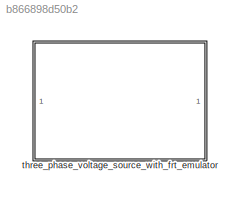
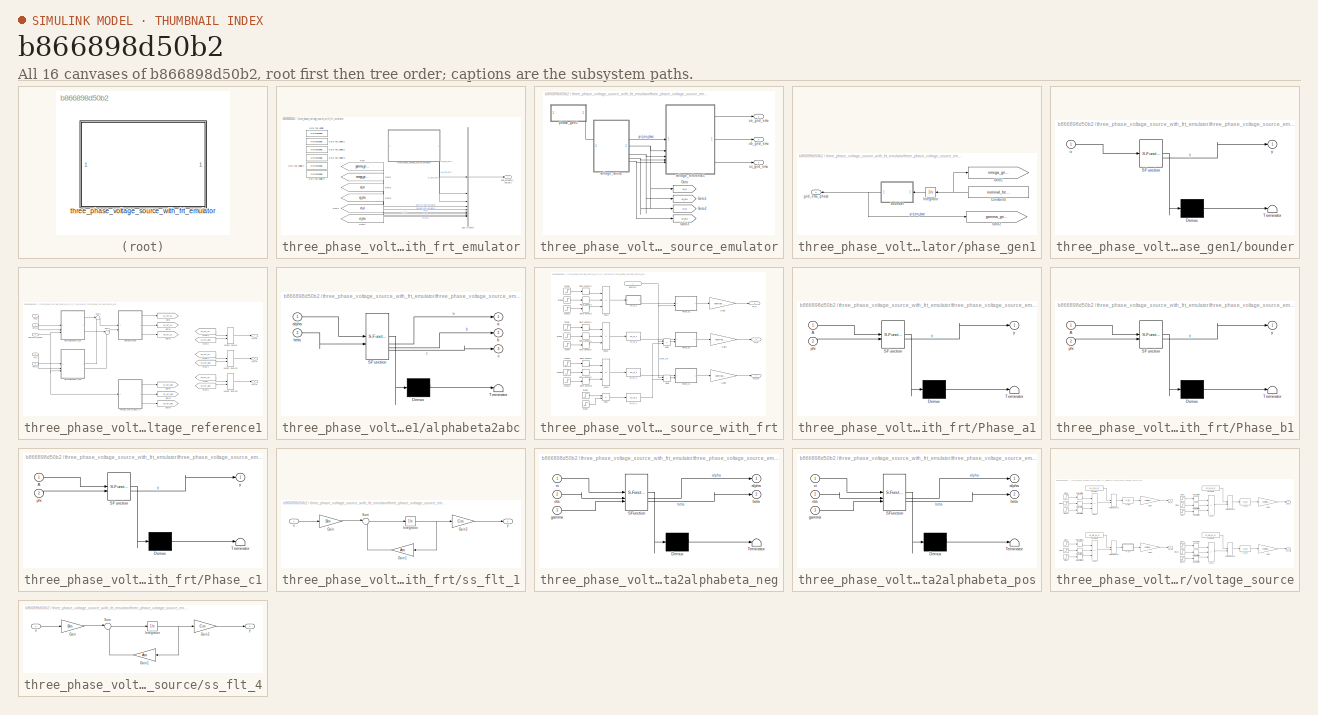
[diagram: thumbnail index - all 16 canvases of the model, root first then tree order]
MODEL slx_b866898d50b2
KIND library
CONFIG SolverName = VariableStepAuto
BLOCK [SubSystem] three_phase_voltage_source_with_frt_emulator
BLOCK [BusCreator] three_phase_voltage_source_with_frt_emulator/Bus Creator
  DisplayOption = bar
  InheritFromInputs = on
  Inputs = 9
BLOCK [From] three_phase_voltage_source_with_frt_emulator/From
  GotoTag = gamma_grid_emulator
  TagVisibility = scoped
BLOCK [From] three_phase_voltage_source_with_frt_emulator/From1
  GotoTag = omega_grid_emulator
  TagVisibility = scoped
BLOCK [From] three_phase_voltage_source_with_frt_emulator/From2
  GotoTag = vp_xi
  TagVisibility = scoped
BLOCK [From] three_phase_voltage_source_with_frt_emulator/From3
  GotoTag = vp_eta
  TagVisibility = scoped
BLOCK [From] three_phase_voltage_source_with_frt_emulator/From4
  GotoTag = vn_xi
  TagVisibility = scoped
BLOCK [From] three_phase_voltage_source_with_frt_emulator/From5
  GotoTag = vn_eta
  TagVisibility = scoped
BLOCK [GotoTagVisibility] three_phase_voltage_source_with_frt_emulator/Goto Tag Visibility
  GotoTag = omega_grid_emulator
BLOCK [GotoTagVisibility] three_phase_voltage_source_with_frt_emulator/Goto Tag Visibility1
  GotoTag = gamma_grid_emulator
BLOCK [GotoTagVisibility] three_phase_voltage_source_with_frt_emulator/Goto Tag Visibility2
  GotoTag = vp_xi
BLOCK [GotoTagVisibility] three_phase_voltage_source_with_frt_emulator/Goto Tag Visibility3
  GotoTag = vp_eta
BLOCK [GotoTagVisibility] three_phase_voltage_source_with_frt_emulator/Goto Tag Visibility4
  GotoTag = vn_xi
BLOCK [GotoTagVisibility] three_phase_voltage_source_with_frt_emulator/Goto Tag Visibility5
  GotoTag = vn_eta
BLOCK [Outport] three_phase_voltage_source_with_frt_emulator/grid_emulator_outputs
  VectorParamsAs1DForOutWhenUnconnected = off
BLOCK [SubSystem] three_phase_voltage_source_with_frt_emulator/three_phase_voltage_source_emulator
BLOCK [Goto] three_phase_voltage_source_with_frt_emulator/three_phase_voltage_source_emulator/Goto
  GotoTag = vp_xi
  TagVisibility = scoped
BLOCK [Goto] three_phase_voltage_source_with_frt_emulator/three_phase_voltage_source_emulator/Goto1
  GotoTag = vp_eta
  TagVisibility = scoped
BLOCK [Goto] three_phase_voltage_source_with_frt_emulator/three_phase_voltage_source_emulator/Goto2
  GotoTag = vn_xi
  TagVisibility = scoped
BLOCK [Goto] three_phase_voltage_source_with_frt_emulator/three_phase_voltage_source_emulator/Goto3
  GotoTag = vn_eta
  TagVisibility = scoped
BLOCK [SubSystem] three_phase_voltage_source_with_frt_emulator/three_phase_voltage_source_emulator/phase_gen1
BLOCK [Constant] three_phase_voltage_source_with_frt_emulator/three_phase_voltage_source_emulator/phase_gen1/Constant4
  NameLocation = top
  Value = nominal_frequency_m*2*pi
BLOCK [Goto] three_phase_voltage_source_with_frt_emulator/three_phase_voltage_source_emulator/phase_gen1/Goto1
  GotoTag = omega_grid_emulator
  TagVisibility = scoped
BLOCK [Goto] three_phase_voltage_source_with_frt_emulator/three_phase_voltage_source_emulator/phase_gen1/Goto2
  GotoTag = gamma_grid_emulator
  TagVisibility = scoped
BLOCK [Integrator] three_phase_voltage_source_with_frt_emulator/three_phase_voltage_source_emulator/phase_gen1/Integrator
  NameLocation = top
BLOCK [SubSystem] three_phase_voltage_source_with_frt_emulator/three_phase_voltage_source_emulator/phase_gen1/bounder
  ErrorFcn = Stateflow.Translate.translate
  PermitHierarchicalResolution = ExplicitOnly
  SFBlockType = MATLAB Function
  TreatAsAtomicUnit = on
  TreatAsGroupedWhenPropagatingVariantConditions = off
BLOCK [Demux] three_phase_voltage_source_with_frt_emulator/three_phase_voltage_source_emulator/phase_gen1/bounder/ Demux 
  Outputs = 1
BLOCK [S-Function] three_phase_voltage_source_with_frt_emulator/three_phase_voltage_source_emulator/phase_gen1/bounder/ SFunction 
  EnableBusSupport = off
  FunctionName = sf_sfun
  PortCounts = [1 2]
  SFcnIsStateOwnerBlock = off
  SFunctionDeploymentMode = off
  Tag = Stateflow S-Function 4
BLOCK [Terminator] three_phase_voltage_source_with_frt_emulator/three_phase_voltage_source_emulator/phase_gen1/bounder/ Terminator 
BLOCK [Inport] three_phase_voltage_source_with_frt_emulator/three_phase_voltage_source_emulator/phase_gen1/bounder/u
BLOCK [Outport] three_phase_voltage_source_with_frt_emulator/three_phase_voltage_source_emulator/phase_gen1/bounder/y
  VectorParamsAs1DForOutWhenUnconnected = off
BLOCK [Outport] three_phase_voltage_source_with_frt_emulator/three_phase_voltage_source_emulator/phase_gen1/grid_emu_phase
  VectorParamsAs1DForOutWhenUnconnected = off
BLOCK [Outport] three_phase_voltage_source_with_frt_emulator/three_phase_voltage_source_emulator/ua_grid_emu
  VectorParamsAs1DForOutWhenUnconnected = off
BLOCK [Outport] three_phase_voltage_source_with_frt_emulator/three_phase_voltage_source_emulator/ub_grid_emu
  Port = 2
  VectorParamsAs1DForOutWhenUnconnected = off
BLOCK [Outport] three_phase_voltage_source_with_frt_emulator/three_phase_voltage_source_emulator/uc_grid_emu
  Port = 3
  VectorParamsAs1DForOutWhenUnconnected = off
BLOCK [SubSystem] three_phase_voltage_source_with_frt_emulator/three_phase_voltage_source_emulator/voltage_reference1
BLOCK [From] three_phase_voltage_source_with_frt_emulator/three_phase_voltage_source_emulator/voltage_reference1/From
  GotoTag = V3_ref_xieta
BLOCK [From] three_phase_voltage_source_with_frt_emulator/three_phase_voltage_source_emulator/voltage_reference1/From1
  GotoTag = V2_ref_xieta
BLOCK [From] three_phase_voltage_source_with_frt_emulator/three_phase_voltage_source_emulator/voltage_reference1/From2
  GotoTag = V1_ref_xieta
BLOCK [From] three_phase_voltage_source_with_frt_emulator/three_phase_voltage_source_emulator/voltage_reference1/From3
  GotoTag = V1_ref_abc
BLOCK [From] three_phase_voltage_source_with_frt_emulator/three_phase_voltage_source_emulator/voltage_reference1/From4
  GotoTag = V2_ref_abc
BLOCK [From] three_phase_voltage_source_with_frt_emulator/three_phase_voltage_source_emulator/voltage_reference1/From5
  GotoTag = V3_ref_abc
BLOCK [Goto] three_phase_voltage_source_with_frt_emulator/three_phase_voltage_source_emulator/voltage_reference1/Goto
  GotoTag = V1_ref_xieta
BLOCK [Goto] three_phase_voltage_source_with_frt_emulator/three_phase_voltage_source_emulator/voltage_reference1/Goto1
  GotoTag = V2_ref_xieta
BLOCK [Goto] three_phase_voltage_source_with_frt_emulator/three_phase_voltage_source_emulator/voltage_reference1/Goto2
  GotoTag = V3_ref_xieta
BLOCK [Goto] three_phase_voltage_source_with_frt_emulator/three_phase_voltage_source_emulator/voltage_reference1/Goto3
  GotoTag = V1_ref_abc
BLOCK [Goto] three_phase_voltage_source_with_frt_emulator/three_phase_voltage_source_emulator/voltage_reference1/Goto4
  GotoTag = V2_ref_abc
BLOCK [Goto] three_phase_voltage_source_with_frt_emulator/three_phase_voltage_source_emulator/voltage_reference1/Goto5
  GotoTag = V3_ref_abc
BLOCK [Sum] three_phase_voltage_source_with_frt_emulator/three_phase_voltage_source_emulator/voltage_reference1/Sum1
  Inputs = |++
BLOCK [Sum] three_phase_voltage_source_with_frt_emulator/three_phase_voltage_source_emulator/voltage_reference1/Sum4
  Inputs = |++
BLOCK [Outport] three_phase_voltage_source_with_frt_emulator/three_phase_voltage_source_emulator/voltage_reference1/V1_ref
  VectorParamsAs1DForOutWhenUnconnected = off
BLOCK [Outport] three_phase_voltage_source_with_frt_emulator/three_phase_voltage_source_emulator/voltage_reference1/V2_ref
  Port = 2
  VectorParamsAs1DForOutWhenUnconnected = off
BLOCK [Outport] three_phase_voltage_source_with_frt_emulator/three_phase_voltage_source_emulator/voltage_reference1/V3_ref
  Port = 3
  VectorParamsAs1DForOutWhenUnconnected = off
BLOCK [VariantSource] three_phase_voltage_source_with_frt_emulator/three_phase_voltage_source_emulator/voltage_reference1/Variant Source
BLOCK [VariantSource] three_phase_voltage_source_with_frt_emulator/three_phase_voltage_source_emulator/voltage_reference1/Variant Source1
BLOCK [VariantSource] three_phase_voltage_source_with_frt_emulator/three_phase_voltage_source_emulator/voltage_reference1/Variant Source2
BLOCK [Inport] three_phase_voltage_source_with_frt_emulator/three_phase_voltage_source_emulator/voltage_reference1/Veta_n
  Port = 5
BLOCK [Inport] three_phase_voltage_source_with_frt_emulator/three_phase_voltage_source_emulator/voltage_reference1/Veta_p
  Port = 3
BLOCK [Inport] three_phase_voltage_source_with_frt_emulator/three_phase_voltage_source_emulator/voltage_reference1/Vxi_n
  Port = 4
BLOCK [Inport] three_phase_voltage_source_with_frt_emulator/three_phase_voltage_source_emulator/voltage_reference1/Vxi_p
  Port = 2
BLOCK [SubSystem] three_phase_voltage_source_with_frt_emulator/three_phase_voltage_source_emulator/voltage_reference1/alphabeta2abc
  ErrorFcn = Stateflow.Translate.translate
  PermitHierarchicalResolution = ExplicitOnly
  SFBlockType = MATLAB Function
  TreatAsAtomicUnit = on
BLOCK [Demux] three_phase_voltage_source_with_frt_emulator/three_phase_voltage_source_emulator/voltage_reference1/alphabeta2abc/ Demux 
  Outputs = 1
BLOCK [S-Function] three_phase_voltage_source_with_frt_emulator/three_phase_voltage_source_emulator/voltage_reference1/alphabeta2abc/ SFunction 
  EnableBusSupport = off
  FunctionName = sf_sfun
  PortCounts = [2 4]
  SFcnIsStateOwnerBlock = off
  SFunctionDeploymentMode = off
  Tag = Stateflow S-Function 5
BLOCK [Terminator] three_phase_voltage_source_with_frt_emulator/three_phase_voltage_source_emulator/voltage_reference1/alphabeta2abc/ Terminator 
BLOCK [Outport] three_phase_voltage_source_with_frt_emulator/three_phase_voltage_source_emulator/voltage_reference1/alphabeta2abc/a
BLOCK [Inport] three_phase_voltage_source_with_frt_emulator/three_phase_voltage_source_emulator/voltage_reference1/alphabeta2abc/alpha
BLOCK [Outport] three_phase_voltage_source_with_frt_emulator/three_phase_voltage_source_emulator/voltage_reference1/alphabeta2abc/b
  Port = 2
BLOCK [Inport] three_phase_voltage_source_with_frt_emulator/three_phase_voltage_source_emulator/voltage_reference1/alphabeta2abc/beta
  Port = 2
BLOCK [Outport] three_phase_voltage_source_with_frt_emulator/three_phase_voltage_source_emulator/voltage_reference1/alphabeta2abc/c
  Port = 3
BLOCK [Inport] three_phase_voltage_source_with_frt_emulator/three_phase_voltage_source_emulator/voltage_reference1/grid_emu_phase
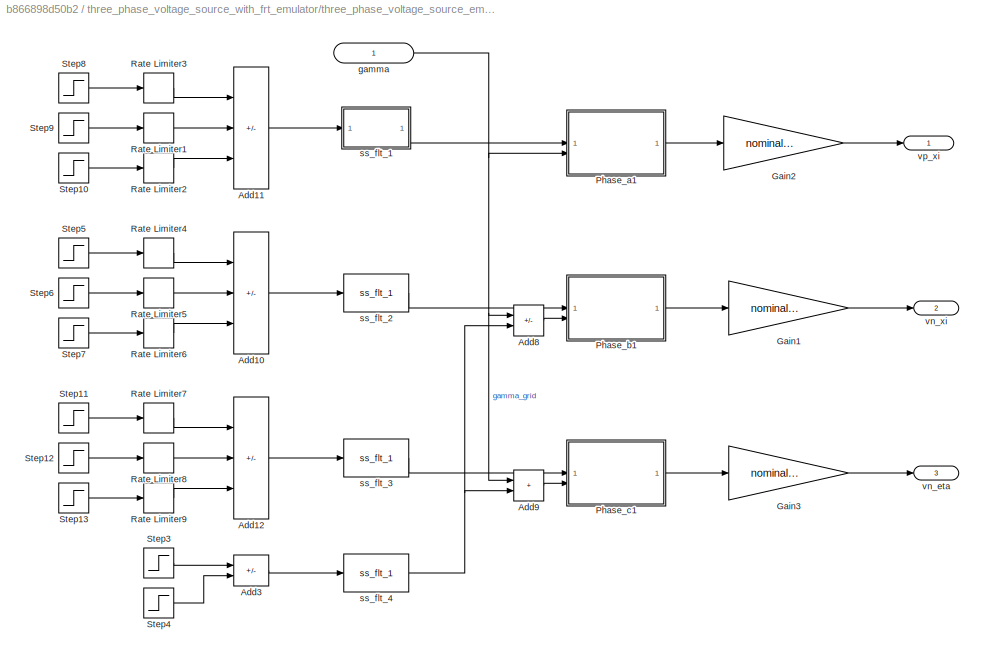
BLOCK [SubSystem] three_phase_voltage_source_with_frt_emulator/three_phase_voltage_source_emulator/voltage_reference1/voltage_source_with_frt
BLOCK [Sum] three_phase_voltage_source_with_frt_emulator/three_phase_voltage_source_emulator/voltage_reference1/voltage_source_with_frt/Add10
  IconShape = rectangular
  Inputs = +-+
BLOCK [Sum] three_phase_voltage_source_with_frt_emulator/three_phase_voltage_source_emulator/voltage_reference1/voltage_source_with_frt/Add11
  IconShape = rectangular
  Inputs = +-+
BLOCK [Sum] three_phase_voltage_source_with_frt_emulator/three_phase_voltage_source_emulator/voltage_reference1/voltage_source_with_frt/Add12
  IconShape = rectangular
  Inputs = +-+
BLOCK [Sum] three_phase_voltage_source_with_frt_emulator/three_phase_voltage_source_emulator/voltage_reference1/voltage_source_with_frt/Add3
  IconShape = rectangular
  Inputs = +-
BLOCK [Sum] three_phase_voltage_source_with_frt_emulator/three_phase_voltage_source_emulator/voltage_reference1/voltage_source_with_frt/Add8
  IconShape = rectangular
  Inputs = +-
BLOCK [Sum] three_phase_voltage_source_with_frt_emulator/three_phase_voltage_source_emulator/voltage_reference1/voltage_source_with_frt/Add9
  IconShape = rectangular
BLOCK [Gain] three_phase_voltage_source_with_frt_emulator/three_phase_voltage_source_emulator/voltage_reference1/voltage_source_with_frt/Gain1
  Gain = nominal_voltage_m/sqrt(3/2)
BLOCK [Gain] three_phase_voltage_source_with_frt_emulator/three_phase_voltage_source_emulator/voltage_reference1/voltage_source_with_frt/Gain2
  Gain = nominal_voltage_m/sqrt(3/2)
BLOCK [Gain] three_phase_voltage_source_with_frt_emulator/three_phase_voltage_source_emulator/voltage_reference1/voltage_source_with_frt/Gain3
  Gain = nominal_voltage_m/sqrt(3/2)
BLOCK [SubSystem] three_phase_voltage_source_with_frt_emulator/three_phase_voltage_source_emulator/voltage_reference1/voltage_source_with_frt/Phase_a1
  ErrorFcn = Stateflow.Translate.translate
  PermitHierarchicalResolution = ExplicitOnly
  SFBlockType = MATLAB Function
  TreatAsAtomicUnit = on
BLOCK [Demux] three_phase_voltage_source_with_frt_emulator/three_phase_voltage_source_emulator/voltage_reference1/voltage_source_with_frt/Phase_a1/ Demux 
  Outputs = 1
BLOCK [S-Function] three_phase_voltage_source_with_frt_emulator/three_phase_voltage_source_emulator/voltage_reference1/voltage_source_with_frt/Phase_a1/ SFunction 
  EnableBusSupport = off
  FunctionName = sf_sfun
  PortCounts = [2 2]
  SFcnIsStateOwnerBlock = off
  SFunctionDeploymentMode = off
  Tag = Stateflow S-Function 7
BLOCK [Terminator] three_phase_voltage_source_with_frt_emulator/three_phase_voltage_source_emulator/voltage_reference1/voltage_source_with_frt/Phase_a1/ Terminator 
BLOCK [Inport] three_phase_voltage_source_with_frt_emulator/three_phase_voltage_source_emulator/voltage_reference1/voltage_source_with_frt/Phase_a1/A
BLOCK [Inport] three_phase_voltage_source_with_frt_emulator/three_phase_voltage_source_emulator/voltage_reference1/voltage_source_with_frt/Phase_a1/phi
  Port = 2
BLOCK [Outport] three_phase_voltage_source_with_frt_emulator/three_phase_voltage_source_emulator/voltage_reference1/voltage_source_with_frt/Phase_a1/y
BLOCK [SubSystem] three_phase_voltage_source_with_frt_emulator/three_phase_voltage_source_emulator/voltage_reference1/voltage_source_with_frt/Phase_b1
  ErrorFcn = Stateflow.Translate.translate
  PermitHierarchicalResolution = ExplicitOnly
  SFBlockType = MATLAB Function
  TreatAsAtomicUnit = on
BLOCK [Demux] three_phase_voltage_source_with_frt_emulator/three_phase_voltage_source_emulator/voltage_reference1/voltage_source_with_frt/Phase_b1/ Demux 
  Outputs = 1
BLOCK [S-Function] three_phase_voltage_source_with_frt_emulator/three_phase_voltage_source_emulator/voltage_reference1/voltage_source_with_frt/Phase_b1/ SFunction 
  EnableBusSupport = off
  FunctionName = sf_sfun
  PortCounts = [2 2]
  SFcnIsStateOwnerBlock = off
  SFunctionDeploymentMode = off
  Tag = Stateflow S-Function 9
BLOCK [Terminator] three_phase_voltage_source_with_frt_emulator/three_phase_voltage_source_emulator/voltage_reference1/voltage_source_with_frt/Phase_b1/ Terminator 
BLOCK [Inport] three_phase_voltage_source_with_frt_emulator/three_phase_voltage_source_emulator/voltage_reference1/voltage_source_with_frt/Phase_b1/A
BLOCK [Inport] three_phase_voltage_source_with_frt_emulator/three_phase_voltage_source_emulator/voltage_reference1/voltage_source_with_frt/Phase_b1/phi
  Port = 2
BLOCK [Outport] three_phase_voltage_source_with_frt_emulator/three_phase_voltage_source_emulator/voltage_reference1/voltage_source_with_frt/Phase_b1/y
BLOCK [SubSystem] three_phase_voltage_source_with_frt_emulator/three_phase_voltage_source_emulator/voltage_reference1/voltage_source_with_frt/Phase_c1
  ErrorFcn = Stateflow.Translate.translate
  PermitHierarchicalResolution = ExplicitOnly
  SFBlockType = MATLAB Function
  TreatAsAtomicUnit = on
BLOCK [Demux] three_phase_voltage_source_with_frt_emulator/three_phase_voltage_source_emulator/voltage_reference1/voltage_source_with_frt/Phase_c1/ Demux 
  Outputs = 1
BLOCK [S-Function] three_phase_voltage_source_with_frt_emulator/three_phase_voltage_source_emulator/voltage_reference1/voltage_source_with_frt/Phase_c1/ SFunction 
  EnableBusSupport = off
  FunctionName = sf_sfun
  PortCounts = [2 2]
  SFcnIsStateOwnerBlock = off
  SFunctionDeploymentMode = off
  Tag = Stateflow S-Function 15
BLOCK [Terminator] three_phase_voltage_source_with_frt_emulator/three_phase_voltage_source_emulator/voltage_reference1/voltage_source_with_frt/Phase_c1/ Terminator 
BLOCK [Inport] three_phase_voltage_source_with_frt_emulator/three_phase_voltage_source_emulator/voltage_reference1/voltage_source_with_frt/Phase_c1/A
BLOCK [Inport] three_phase_voltage_source_with_frt_emulator/three_phase_voltage_source_emulator/voltage_reference1/voltage_source_with_frt/Phase_c1/phi
  Port = 2
BLOCK [Outport] three_phase_voltage_source_with_frt_emulator/three_phase_voltage_source_emulator/voltage_reference1/voltage_source_with_frt/Phase_c1/y
BLOCK [RateLimiter] three_phase_voltage_source_with_frt_emulator/three_phase_voltage_source_emulator/voltage_reference1/voltage_source_with_frt/Rate Limiter1
  FallingSlewLimit = -Vemu_ref_norm_m/t_ramp_m
  RisingSlewLimit = Vemu_ref_norm_m/t_ramp_m
  SampleTimeMode = inherited
BLOCK [RateLimiter] three_phase_voltage_source_with_frt_emulator/three_phase_voltage_source_emulator/voltage_reference1/voltage_source_with_frt/Rate Limiter2
  FallingSlewLimit = -Vemu_ref_norm_m/t_ramp_m
  RisingSlewLimit = Vemu_ref_norm_m/t_ramp_m
  SampleTimeMode = inherited
BLOCK [RateLimiter] three_phase_voltage_source_with_frt_emulator/three_phase_voltage_source_emulator/voltage_reference1/voltage_source_with_frt/Rate Limiter3
  FallingSlewLimit = -Vemu_ref_norm_m/t_ramp_m
  RisingSlewLimit = Vemu_ref_norm_m/t_ramp_m
  SampleTimeMode = inherited
BLOCK [RateLimiter] three_phase_voltage_source_with_frt_emulator/three_phase_voltage_source_emulator/voltage_reference1/voltage_source_with_frt/Rate Limiter4
  FallingSlewLimit = -Vemu_ref_norm_m/t_ramp_m
  RisingSlewLimit = Vemu_ref_norm_m/t_ramp_m
  SampleTimeMode = inherited
BLOCK [RateLimiter] three_phase_voltage_source_with_frt_emulator/three_phase_voltage_source_emulator/voltage_reference1/voltage_source_with_frt/Rate Limiter5
  FallingSlewLimit = -Vemu_ref_norm_m/t_ramp_m
  RisingSlewLimit = Vemu_ref_norm_m/t_ramp_m
  SampleTimeMode = inherited
BLOCK [RateLimiter] three_phase_voltage_source_with_frt_emulator/three_phase_voltage_source_emulator/voltage_reference1/voltage_source_with_frt/Rate Limiter6
  FallingSlewLimit = -Vemu_ref_norm_m/t_ramp_m
  RisingSlewLimit = Vemu_ref_norm_m/t_ramp_m
  SampleTimeMode = inherited
BLOCK [RateLimiter] three_phase_voltage_source_with_frt_emulator/three_phase_voltage_source_emulator/voltage_reference1/voltage_source_with_frt/Rate Limiter7
  FallingSlewLimit = -Vemu_ref_norm_m/t_ramp_m
  RisingSlewLimit = Vemu_ref_norm_m/t_ramp_m
  SampleTimeMode = inherited
BLOCK [RateLimiter] three_phase_voltage_source_with_frt_emulator/three_phase_voltage_source_emulator/voltage_reference1/voltage_source_with_frt/Rate Limiter8
  FallingSlewLimit = -Vemu_ref_norm_m/t_ramp_m
  RisingSlewLimit = Vemu_ref_norm_m/t_ramp_m
  SampleTimeMode = inherited
BLOCK [RateLimiter] three_phase_voltage_source_with_frt_emulator/three_phase_voltage_source_emulator/voltage_reference1/voltage_source_with_frt/Rate Limiter9
  FallingSlewLimit = -Vemu_ref_norm_m/t_ramp_m
  RisingSlewLimit = Vemu_ref_norm_m/t_ramp_m
  SampleTimeMode = inherited
BLOCK [Step] three_phase_voltage_source_with_frt_emulator/three_phase_voltage_source_emulator/voltage_reference1/voltage_source_with_frt/Step10
  FinalValue = Vemu_ref_norm_m*(1-Amplitude_U_m)
  SampleTime = 0
  Time = end_time_LVRT_m
BLOCK [Step] three_phase_voltage_source_with_frt_emulator/three_phase_voltage_source_emulator/voltage_reference1/voltage_source_with_frt/Step11
  FinalValue = Vemu_ref_norm_m
  SampleTime = 0
  Time = 0
BLOCK [Step] three_phase_voltage_source_with_frt_emulator/three_phase_voltage_source_emulator/voltage_reference1/voltage_source_with_frt/Step12
  FinalValue = Vemu_ref_norm_m*(1-Amplitude_W_m)
  SampleTime = 0
  Time = start_time_LVRT_m
BLOCK [Step] three_phase_voltage_source_with_frt_emulator/three_phase_voltage_source_emulator/voltage_reference1/voltage_source_with_frt/Step13
  FinalValue = Vemu_ref_norm_m*(1-Amplitude_W_m)
  SampleTime = 0
  Time = end_time_LVRT_m
BLOCK [Step] three_phase_voltage_source_with_frt_emulator/three_phase_voltage_source_emulator/voltage_reference1/voltage_source_with_frt/Step3
  FinalValue = Phase_shift_m
  SampleTime = 0
  Time = start_time_LVRT
BLOCK [Step] three_phase_voltage_source_with_frt_emulator/three_phase_voltage_source_emulator/voltage_reference1/voltage_source_with_frt/Step4
  FinalValue = Phase_shift_m
  SampleTime = 0
  Time = end_time_LVRT_m
BLOCK [Step] three_phase_voltage_source_with_frt_emulator/three_phase_voltage_source_emulator/voltage_reference1/voltage_source_with_frt/Step5
  FinalValue = Vemu_ref_norm_m
  SampleTime = 0
  Time = 0
BLOCK [Step] three_phase_voltage_source_with_frt_emulator/three_phase_voltage_source_emulator/voltage_reference1/voltage_source_with_frt/Step6
  FinalValue = Vemu_ref_norm_m*(1-Amplitude_V_m)
  SampleTime = 0
  Time = start_time_LVRT_m
BLOCK [Step] three_phase_voltage_source_with_frt_emulator/three_phase_voltage_source_emulator/voltage_reference1/voltage_source_with_frt/Step7
  FinalValue = Vemu_ref_norm_m*(1-Amplitude_V_m)
  SampleTime = 0
  Time = end_time_LVRT_m
BLOCK [Step] three_phase_voltage_source_with_frt_emulator/three_phase_voltage_source_emulator/voltage_reference1/voltage_source_with_frt/Step8
  FinalValue = Vemu_ref_norm_m
  SampleTime = 0
  Time = 0
BLOCK [Step] three_phase_voltage_source_with_frt_emulator/three_phase_voltage_source_emulator/voltage_reference1/voltage_source_with_frt/Step9
  FinalValue = Vemu_ref_norm_m*(1-Amplitude_U_m)
  SampleTime = 0
  Time = start_time_LVRT_m
BLOCK [Inport] three_phase_voltage_source_with_frt_emulator/three_phase_voltage_source_emulator/voltage_reference1/voltage_source_with_frt/gamma
  IconDisplay = Signal name
BLOCK [SubSystem] three_phase_voltage_source_with_frt_emulator/three_phase_voltage_source_emulator/voltage_reference1/voltage_source_with_frt/ss_flt_1
BLOCK [Gain] three_phase_voltage_source_with_frt_emulator/three_phase_voltage_source_emulator/voltage_reference1/voltage_source_with_frt/ss_flt_1/Gain
  Gain = Bm
  Multiplication = Matrix(K*u)
BLOCK [Gain] three_phase_voltage_source_with_frt_emulator/three_phase_voltage_source_emulator/voltage_reference1/voltage_source_with_frt/ss_flt_1/Gain1
  Gain = Am
  Multiplication = Matrix(K*u)
  NameLocation = top
BLOCK [Gain] three_phase_voltage_source_with_frt_emulator/three_phase_voltage_source_emulator/voltage_reference1/voltage_source_with_frt/ss_flt_1/Gain2
  Gain = Cm
  Multiplication = Matrix(K*u)
BLOCK [Integrator] three_phase_voltage_source_with_frt_emulator/three_phase_voltage_source_emulator/voltage_reference1/voltage_source_with_frt/ss_flt_1/Integrator
BLOCK [Sum] three_phase_voltage_source_with_frt_emulator/three_phase_voltage_source_emulator/voltage_reference1/voltage_source_with_frt/ss_flt_1/Sum
  Inputs = |++
BLOCK [Inport] three_phase_voltage_source_with_frt_emulator/three_phase_voltage_source_emulator/voltage_reference1/voltage_source_with_frt/ss_flt_1/u
BLOCK [Outport] three_phase_voltage_source_with_frt_emulator/three_phase_voltage_source_emulator/voltage_reference1/voltage_source_with_frt/ss_flt_1/y
BLOCK [Reference] three_phase_voltage_source_with_frt_emulator/three_phase_voltage_source_emulator/voltage_reference1/voltage_source_with_frt/ss_flt_2  REF=$bdroot/three_phase_voltage_source_with_frt_emulator/three_phase_voltage_source_emulator/voltage_reference1/voltage_source_with_frt/ss_flt_1
  SourceBlock = $bdroot/three_phase_voltage_source_with_frt_emulator/three_phase_voltage_source_emulator/voltage_reference1/voltage_source_with_frt/ss_flt_1
  SourceType = SubSystem
BLOCK [Reference] three_phase_voltage_source_with_frt_emulator/three_phase_voltage_source_emulator/voltage_reference1/voltage_source_with_frt/ss_flt_3  REF=$bdroot/three_phase_voltage_source_with_frt_emulator/three_phase_voltage_source_emulator/voltage_reference1/voltage_source_with_frt/ss_flt_1
  SourceBlock = $bdroot/three_phase_voltage_source_with_frt_emulator/three_phase_voltage_source_emulator/voltage_reference1/voltage_source_with_frt/ss_flt_1
  SourceType = SubSystem
BLOCK [Reference] three_phase_voltage_source_with_frt_emulator/three_phase_voltage_source_emulator/voltage_reference1/voltage_source_with_frt/ss_flt_4  REF=$bdroot/three_phase_voltage_source_with_frt_emulator/three_phase_voltage_source_emulator/voltage_reference1/voltage_source_with_frt/ss_flt_1
  SourceBlock = $bdroot/three_phase_voltage_source_with_frt_emulator/three_phase_voltage_source_emulator/voltage_reference1/voltage_source_with_frt/ss_flt_1
  SourceType = SubSystem
BLOCK [Outport] three_phase_voltage_source_with_frt_emulator/three_phase_voltage_source_emulator/voltage_reference1/voltage_source_with_frt/vn_eta
  IconDisplay = Signal name
  Port = 3
  VectorParamsAs1DForOutWhenUnconnected = off
BLOCK [Outport] three_phase_voltage_source_with_frt_emulator/three_phase_voltage_source_emulator/voltage_reference1/voltage_source_with_frt/vn_xi
  IconDisplay = Signal name
  Port = 2
  VectorParamsAs1DForOutWhenUnconnected = off
BLOCK [Outport] three_phase_voltage_source_with_frt_emulator/three_phase_voltage_source_emulator/voltage_reference1/voltage_source_with_frt/vp_xi
  IconDisplay = Signal name
  VectorParamsAs1DForOutWhenUnconnected = off
BLOCK [SubSystem] three_phase_voltage_source_with_frt_emulator/three_phase_voltage_source_emulator/voltage_reference1/xieta2alphabeta_neg
  ErrorFcn = Stateflow.Translate.translate
  PermitHierarchicalResolution = ExplicitOnly
  SFBlockType = MATLAB Function
  TreatAsAtomicUnit = on
BLOCK [Demux] three_phase_voltage_source_with_frt_emulator/three_phase_voltage_source_emulator/voltage_reference1/xieta2alphabeta_neg/ Demux 
  Outputs = 1
BLOCK [S-Function] three_phase_voltage_source_with_frt_emulator/three_phase_voltage_source_emulator/voltage_reference1/xieta2alphabeta_neg/ SFunction 
  EnableBusSupport = off
  FunctionName = sf_sfun
  PortCounts = [3 3]
  SFcnIsStateOwnerBlock = off
  SFunctionDeploymentMode = off
  Tag = Stateflow S-Function 23
BLOCK [Terminator] three_phase_voltage_source_with_frt_emulator/three_phase_voltage_source_emulator/voltage_reference1/xieta2alphabeta_neg/ Terminator 
BLOCK [Outport] three_phase_voltage_source_with_frt_emulator/three_phase_voltage_source_emulator/voltage_reference1/xieta2alphabeta_neg/alpha
BLOCK [Outport] three_phase_voltage_source_with_frt_emulator/three_phase_voltage_source_emulator/voltage_reference1/xieta2alphabeta_neg/beta
  Port = 2
BLOCK [Inport] three_phase_voltage_source_with_frt_emulator/three_phase_voltage_source_emulator/voltage_reference1/xieta2alphabeta_neg/eta
  Port = 2
BLOCK [Inport] three_phase_voltage_source_with_frt_emulator/three_phase_voltage_source_emulator/voltage_reference1/xieta2alphabeta_neg/gamma
  Port = 3
BLOCK [Inport] three_phase_voltage_source_with_frt_emulator/three_phase_voltage_source_emulator/voltage_reference1/xieta2alphabeta_neg/xi
BLOCK [SubSystem] three_phase_voltage_source_with_frt_emulator/three_phase_voltage_source_emulator/voltage_reference1/xieta2alphabeta_pos
  ErrorFcn = Stateflow.Translate.translate
  PermitHierarchicalResolution = ExplicitOnly
  SFBlockType = MATLAB Function
  TreatAsAtomicUnit = on
BLOCK [Demux] three_phase_voltage_source_with_frt_emulator/three_phase_voltage_source_emulator/voltage_reference1/xieta2alphabeta_pos/ Demux 
  Outputs = 1
BLOCK [S-Function] three_phase_voltage_source_with_frt_emulator/three_phase_voltage_source_emulator/voltage_reference1/xieta2alphabeta_pos/ SFunction 
  EnableBusSupport = off
  FunctionName = sf_sfun
  PortCounts = [3 3]
  SFcnIsStateOwnerBlock = off
  SFunctionDeploymentMode = off
  Tag = Stateflow S-Function 24
BLOCK [Terminator] three_phase_voltage_source_with_frt_emulator/three_phase_voltage_source_emulator/voltage_reference1/xieta2alphabeta_pos/ Terminator 
BLOCK [Outport] three_phase_voltage_source_with_frt_emulator/three_phase_voltage_source_emulator/voltage_reference1/xieta2alphabeta_pos/alpha
BLOCK [Outport] three_phase_voltage_source_with_frt_emulator/three_phase_voltage_source_emulator/voltage_reference1/xieta2alphabeta_pos/beta
  Port = 2
BLOCK [Inport] three_phase_voltage_source_with_frt_emulator/three_phase_voltage_source_emulator/voltage_reference1/xieta2alphabeta_pos/eta
  Port = 2
BLOCK [Inport] three_phase_voltage_source_with_frt_emulator/three_phase_voltage_source_emulator/voltage_reference1/xieta2alphabeta_pos/gamma
  Port = 3
BLOCK [Inport] three_phase_voltage_source_with_frt_emulator/three_phase_voltage_source_emulator/voltage_reference1/xieta2alphabeta_pos/xi
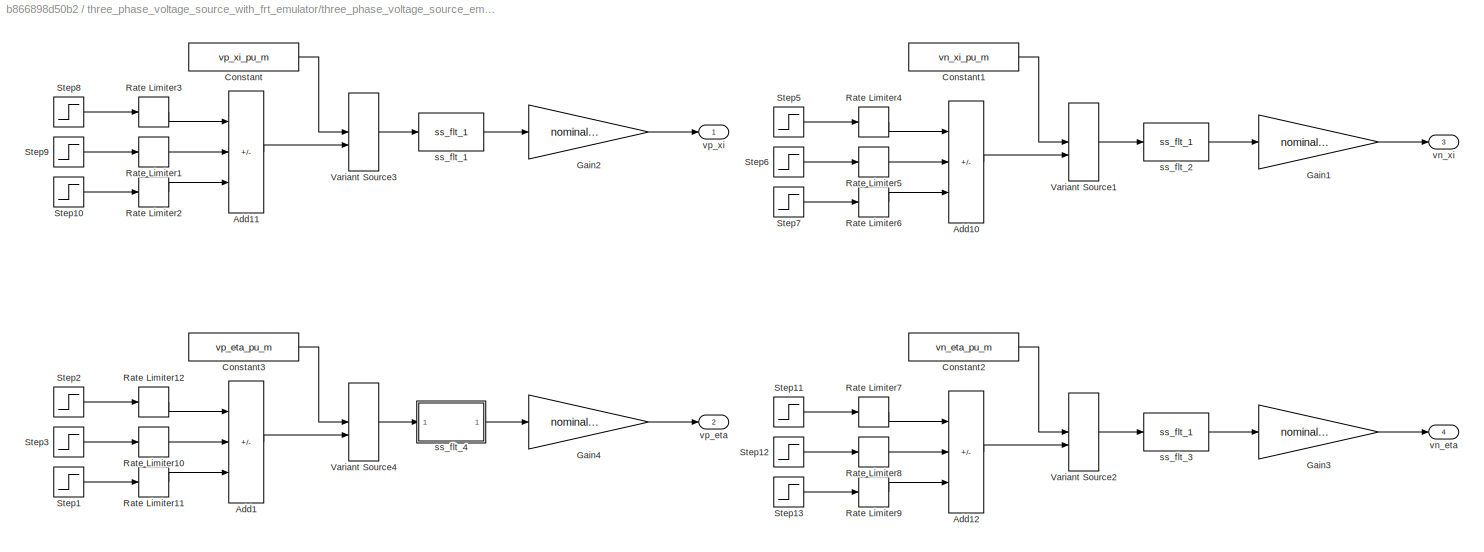
BLOCK [SubSystem] three_phase_voltage_source_with_frt_emulator/three_phase_voltage_source_emulator/voltage_source
BLOCK [Sum] three_phase_voltage_source_with_frt_emulator/three_phase_voltage_source_emulator/voltage_source/Add1
  IconShape = rectangular
  Inputs = +-+
BLOCK [Sum] three_phase_voltage_source_with_frt_emulator/three_phase_voltage_source_emulator/voltage_source/Add10
  IconShape = rectangular
  Inputs = +-+
BLOCK [Sum] three_phase_voltage_source_with_frt_emulator/three_phase_voltage_source_emulator/voltage_source/Add11
  IconShape = rectangular
  Inputs = +-+
BLOCK [Sum] three_phase_voltage_source_with_frt_emulator/three_phase_voltage_source_emulator/voltage_source/Add12
  IconShape = rectangular
  Inputs = +-+
BLOCK [Constant] three_phase_voltage_source_with_frt_emulator/three_phase_voltage_source_emulator/voltage_source/Constant
  Value = vp_xi_pu_m
BLOCK [Constant] three_phase_voltage_source_with_frt_emulator/three_phase_voltage_source_emulator/voltage_source/Constant1
  Value = vn_xi_pu_m
BLOCK [Constant] three_phase_voltage_source_with_frt_emulator/three_phase_voltage_source_emulator/voltage_source/Constant2
  Value = vn_eta_pu_m
BLOCK [Constant] three_phase_voltage_source_with_frt_emulator/three_phase_voltage_source_emulator/voltage_source/Constant3
  Value = vp_eta_pu_m
BLOCK [Gain] three_phase_voltage_source_with_frt_emulator/three_phase_voltage_source_emulator/voltage_source/Gain1
  Gain = nominal_voltage_m/sqrt(3/2)
BLOCK [Gain] three_phase_voltage_source_with_frt_emulator/three_phase_voltage_source_emulator/voltage_source/Gain2
  Gain = nominal_voltage_m/sqrt(3/2)
BLOCK [Gain] three_phase_voltage_source_with_frt_emulator/three_phase_voltage_source_emulator/voltage_source/Gain3
  Gain = nominal_voltage_m/sqrt(3/2)
BLOCK [Gain] three_phase_voltage_source_with_frt_emulator/three_phase_voltage_source_emulator/voltage_source/Gain4
  Gain = nominal_voltage_m/sqrt(3/2)
BLOCK [RateLimiter] three_phase_voltage_source_with_frt_emulator/three_phase_voltage_source_emulator/voltage_source/Rate Limiter1
  FallingSlewLimit = -Vemu_ref_norm_m/t_ramp_m
  RisingSlewLimit = Vemu_ref_norm_m/t_ramp_m
  SampleTimeMode = inherited
BLOCK [RateLimiter] three_phase_voltage_source_with_frt_emulator/three_phase_voltage_source_emulator/voltage_source/Rate Limiter10
  FallingSlewLimit = -Vemu_ref_norm_m/t_ramp_m
  RisingSlewLimit = Vemu_ref_norm_m/t_ramp_m
  SampleTimeMode = inherited
BLOCK [RateLimiter] three_phase_voltage_source_with_frt_emulator/three_phase_voltage_source_emulator/voltage_source/Rate Limiter11
  FallingSlewLimit = -Vemu_ref_norm_m/t_ramp_m
  RisingSlewLimit = Vemu_ref_norm_m/t_ramp_m
  SampleTimeMode = inherited
BLOCK [RateLimiter] three_phase_voltage_source_with_frt_emulator/three_phase_voltage_source_emulator/voltage_source/Rate Limiter12
  FallingSlewLimit = -Vemu_ref_norm_m/t_ramp_m
  RisingSlewLimit = Vemu_ref_norm_m/t_ramp_m
  SampleTimeMode = inherited
BLOCK [RateLimiter] three_phase_voltage_source_with_frt_emulator/three_phase_voltage_source_emulator/voltage_source/Rate Limiter2
  FallingSlewLimit = -Vemu_ref_norm_m/t_ramp_m
  RisingSlewLimit = Vemu_ref_norm_m/t_ramp_m
  SampleTimeMode = inherited
BLOCK [RateLimiter] three_phase_voltage_source_with_frt_emulator/three_phase_voltage_source_emulator/voltage_source/Rate Limiter3
  FallingSlewLimit = -Vemu_ref_norm_m/t_ramp_m
  RisingSlewLimit = Vemu_ref_norm_m/t_ramp_m
  SampleTimeMode = inherited
BLOCK [RateLimiter] three_phase_voltage_source_with_frt_emulator/three_phase_voltage_source_emulator/voltage_source/Rate Limiter4
  FallingSlewLimit = -Vemu_ref_norm_m/t_ramp_m
  RisingSlewLimit = Vemu_ref_norm_m/t_ramp_m
  SampleTimeMode = inherited
BLOCK [RateLimiter] three_phase_voltage_source_with_frt_emulator/three_phase_voltage_source_emulator/voltage_source/Rate Limiter5
  FallingSlewLimit = -Vemu_ref_norm_m/t_ramp_m
  RisingSlewLimit = Vemu_ref_norm_m/t_ramp_m
  SampleTimeMode = inherited
BLOCK [RateLimiter] three_phase_voltage_source_with_frt_emulator/three_phase_voltage_source_emulator/voltage_source/Rate Limiter6
  FallingSlewLimit = -Vemu_ref_norm_m/t_ramp_m
  RisingSlewLimit = Vemu_ref_norm_m/t_ramp_m
  SampleTimeMode = inherited
BLOCK [RateLimiter] three_phase_voltage_source_with_frt_emulator/three_phase_voltage_source_emulator/voltage_source/Rate Limiter7
  FallingSlewLimit = -Vemu_ref_norm_m/t_ramp_m
  RisingSlewLimit = Vemu_ref_norm_m/t_ramp_m
  SampleTimeMode = inherited
BLOCK [RateLimiter] three_phase_voltage_source_with_frt_emulator/three_phase_voltage_source_emulator/voltage_source/Rate Limiter8
  FallingSlewLimit = -Vemu_ref_norm_m/t_ramp_m
  RisingSlewLimit = Vemu_ref_norm_m/t_ramp_m
  SampleTimeMode = inherited
BLOCK [RateLimiter] three_phase_voltage_source_with_frt_emulator/three_phase_voltage_source_emulator/voltage_source/Rate Limiter9
  FallingSlewLimit = -Vemu_ref_norm_m/t_ramp_m
  RisingSlewLimit = Vemu_ref_norm_m/t_ramp_m
  SampleTimeMode = inherited
BLOCK [Step] three_phase_voltage_source_with_frt_emulator/three_phase_voltage_source_emulator/voltage_source/Step1
  FinalValue = deepPOSeta_m
  SampleTime = 0
  Time = end_time_LVRT_m
BLOCK [Step] three_phase_voltage_source_with_frt_emulator/three_phase_voltage_source_emulator/voltage_source/Step10
  FinalValue = vp_xi_pu_m*deepPOSxi_m
  SampleTime = 0
  Time = end_time_LVRT_m
BLOCK [Step] three_phase_voltage_source_with_frt_emulator/three_phase_voltage_source_emulator/voltage_source/Step11
  FinalValue = vn_eta_pu_m
  SampleTime = 0
  Time = 0
BLOCK [Step] three_phase_voltage_source_with_frt_emulator/three_phase_voltage_source_emulator/voltage_source/Step12
  FinalValue = deepNEGeta_m
  SampleTime = 0
  Time = start_time_LVRT_m
BLOCK [Step] three_phase_voltage_source_with_frt_emulator/three_phase_voltage_source_emulator/voltage_source/Step13
  FinalValue = deepNEGeta_m
  SampleTime = 0
  Time = end_time_LVRT_m
BLOCK [Step] three_phase_voltage_source_with_frt_emulator/three_phase_voltage_source_emulator/voltage_source/Step2
  FinalValue = vp_eta_pu_m
  SampleTime = 0
  Time = 0
BLOCK [Step] three_phase_voltage_source_with_frt_emulator/three_phase_voltage_source_emulator/voltage_source/Step3
  FinalValue = deepPOSeta_m
  SampleTime = 0
  Time = start_time_LVRT_m
BLOCK [Step] three_phase_voltage_source_with_frt_emulator/three_phase_voltage_source_emulator/voltage_source/Step5
  FinalValue = vn_xi_pu_m
  SampleTime = 0
  Time = 0
BLOCK [Step] three_phase_voltage_source_with_frt_emulator/three_phase_voltage_source_emulator/voltage_source/Step6
  FinalValue = deepNEGxi_m
  SampleTime = 0
  Time = start_time_LVRT_m
BLOCK [Step] three_phase_voltage_source_with_frt_emulator/three_phase_voltage_source_emulator/voltage_source/Step7
  FinalValue = deepNEGxi_m
  SampleTime = 0
  Time = end_time_LVRT_m
BLOCK [Step] three_phase_voltage_source_with_frt_emulator/three_phase_voltage_source_emulator/voltage_source/Step8
  FinalValue = vp_xi_pu_m
  SampleTime = 0
  Time = 0
BLOCK [Step] three_phase_voltage_source_with_frt_emulator/three_phase_voltage_source_emulator/voltage_source/Step9
  FinalValue = vp_xi_pu_m*deepPOSxi_m
  SampleTime = 0
  Time = start_time_LVRT_m
BLOCK [VariantSource] three_phase_voltage_source_with_frt_emulator/three_phase_voltage_source_emulator/voltage_source/Variant Source1
BLOCK [VariantSource] three_phase_voltage_source_with_frt_emulator/three_phase_voltage_source_emulator/voltage_source/Variant Source2
BLOCK [VariantSource] three_phase_voltage_source_with_frt_emulator/three_phase_voltage_source_emulator/voltage_source/Variant Source3
BLOCK [VariantSource] three_phase_voltage_source_with_frt_emulator/three_phase_voltage_source_emulator/voltage_source/Variant Source4
BLOCK [Reference] three_phase_voltage_source_with_frt_emulator/three_phase_voltage_source_emulator/voltage_source/ss_flt_1  REF=$bdroot/three_phase_voltage_source_with_frt_emulator/three_phase_voltage_source_emulator/voltage_reference1/voltage_source_with_frt/ss_flt_1
  SourceBlock = $bdroot/three_phase_voltage_source_with_frt_emulator/three_phase_voltage_source_emulator/voltage_reference1/voltage_source_with_frt/ss_flt_1
  SourceType = SubSystem
BLOCK [Reference] three_phase_voltage_source_with_frt_emulator/three_phase_voltage_source_emulator/voltage_source/ss_flt_2  REF=$bdroot/three_phase_voltage_source_with_frt_emulator/three_phase_voltage_source_emulator/voltage_reference1/voltage_source_with_frt/ss_flt_1
  SourceBlock = $bdroot/three_phase_voltage_source_with_frt_emulator/three_phase_voltage_source_emulator/voltage_reference1/voltage_source_with_frt/ss_flt_1
  SourceType = SubSystem
BLOCK [Reference] three_phase_voltage_source_with_frt_emulator/three_phase_voltage_source_emulator/voltage_source/ss_flt_3  REF=$bdroot/three_phase_voltage_source_with_frt_emulator/three_phase_voltage_source_emulator/voltage_reference1/voltage_source_with_frt/ss_flt_1
  SourceBlock = $bdroot/three_phase_voltage_source_with_frt_emulator/three_phase_voltage_source_emulator/voltage_reference1/voltage_source_with_frt/ss_flt_1
  SourceType = SubSystem
BLOCK [SubSystem] three_phase_voltage_source_with_frt_emulator/three_phase_voltage_source_emulator/voltage_source/ss_flt_4
BLOCK [Gain] three_phase_voltage_source_with_frt_emulator/three_phase_voltage_source_emulator/voltage_source/ss_flt_4/Gain
  Gain = Bm
  Multiplication = Matrix(K*u)
BLOCK [Gain] three_phase_voltage_source_with_frt_emulator/three_phase_voltage_source_emulator/voltage_source/ss_flt_4/Gain1
  Gain = Am
  Multiplication = Matrix(K*u)
  NameLocation = top
BLOCK [Gain] three_phase_voltage_source_with_frt_emulator/three_phase_voltage_source_emulator/voltage_source/ss_flt_4/Gain2
  Gain = Cm
  Multiplication = Matrix(K*u)
BLOCK [Integrator] three_phase_voltage_source_with_frt_emulator/three_phase_voltage_source_emulator/voltage_source/ss_flt_4/Integrator
BLOCK [Sum] three_phase_voltage_source_with_frt_emulator/three_phase_voltage_source_emulator/voltage_source/ss_flt_4/Sum
  Inputs = |++
BLOCK [Inport] three_phase_voltage_source_with_frt_emulator/three_phase_voltage_source_emulator/voltage_source/ss_flt_4/u
BLOCK [Outport] three_phase_voltage_source_with_frt_emulator/three_phase_voltage_source_emulator/voltage_source/ss_flt_4/y
BLOCK [Outport] three_phase_voltage_source_with_frt_emulator/three_phase_voltage_source_emulator/voltage_source/vn_eta
  Port = 4
  VectorParamsAs1DForOutWhenUnconnected = off
BLOCK [Outport] three_phase_voltage_source_with_frt_emulator/three_phase_voltage_source_emulator/voltage_source/vn_xi
  Port = 3
  VectorParamsAs1DForOutWhenUnconnected = off
BLOCK [Outport] three_phase_voltage_source_with_frt_emulator/three_phase_voltage_source_emulator/voltage_source/vp_eta
  Port = 2
  VectorParamsAs1DForOutWhenUnconnected = off
BLOCK [Outport] three_phase_voltage_source_with_frt_emulator/three_phase_voltage_source_emulator/voltage_source/vp_xi
  VectorParamsAs1DForOutWhenUnconnected = off
CHART three_phase_voltage_source_with_frt_emulator/three_phase_voltage_source_emulator/phase_gen1/bounder states=1 transitions=1
  STATE_LABEL 'eML_blk_kernel()'
  STATE_LABEL 'SCRIPT:\nfunction y = bounder(u)    \n    y = -pi + mod(u+3*pi,2*pi);\nend\n\n'
CHART three_phase_voltage_source_with_frt_emulator/three_phase_voltage_source_emulator/voltage_reference1/alphabeta2abc states=1 transitions=1
  STATE_LABEL 'eML_blk_kernel()'
  STATE_LABEL 'SCRIPT:\nfunction [a,b,c] = alphabeta2abc(alpha,beta)\n\n    a  =  alpha;\n    b  =  -0.5*alpha + sqrt(3)/2*beta;\n    c  =  -0.5*alpha - sqrt(3)/2*beta;\nend\n'
CHART three_phase_voltage_source_with_frt_emulator/three_phase_voltage_source_emulator/voltage_reference1/voltage_source_with_frt/Phase_a1 states=1 transitions=1
  STATE_LABEL 'eML_blk_kernel()'
  STATE_LABEL 'SCRIPT:\nfunction y = Phase_a(A,phi)\n\n    y = A*cos(phi);\n\nend\n'
CHART three_phase_voltage_source_with_frt_emulator/three_phase_voltage_source_emulator/voltage_reference1/voltage_source_with_frt/Phase_b1 states=1 transitions=1
  STATE_LABEL 'eML_blk_kernel()'
  STATE_LABEL 'SCRIPT:\nfunction y = Phase_b(A,phi)\n\n    y = A*cos(phi-2*pi/3);\n\nend\n'
CHART three_phase_voltage_source_with_frt_emulator/three_phase_voltage_source_emulator/voltage_reference1/voltage_source_with_frt/Phase_c1 states=1 transitions=1
  STATE_LABEL 'eML_blk_kernel()'
  STATE_LABEL 'SCRIPT:\nfunction y = Phase_c(A,phi)\n\n    y = A*cos(phi-4*pi/3);\n\nend\n'
CHART three_phase_voltage_source_with_frt_emulator/three_phase_voltage_source_emulator/voltage_reference1/xieta2alphabeta_neg states=1 transitions=1
  STATE_LABEL 'eML_blk_kernel()'
  STATE_LABEL 'SCRIPT:\nfunction [alpha,beta] = xieta2alphabeta_neg(xi,eta,gamma)\n\n    alpha  =  xi*cos(gamma) + eta*sin(gamma);\n    beta = -xi*sin(gamma) + eta*cos(gamma);\n\nend\n'
CHART three_phase_voltage_source_with_frt_emulator/three_phase_voltage_source_emulator/voltage_reference1/xieta2alphabeta_pos states=1 transitions=1
  STATE_LABEL 'eML_blk_kernel()'
  STATE_LABEL 'SCRIPT:\nfunction [alpha,beta] = xieta2alphabeta_pos(xi,eta,gamma)\n\n    alpha  =  xi*cos(gamma) - eta*sin(gamma);\n    beta = xi*sin(gamma) + eta*cos(gamma);\n\nend\n'
CHART  states=0 transitions=0
CHART  states=0 transitions=0
CHART  states=0 transitions=0
CHART  states=0 transitions=0
CHART  states=0 transitions=0
CHART  states=0 transitions=0
CHART  states=0 transitions=0
